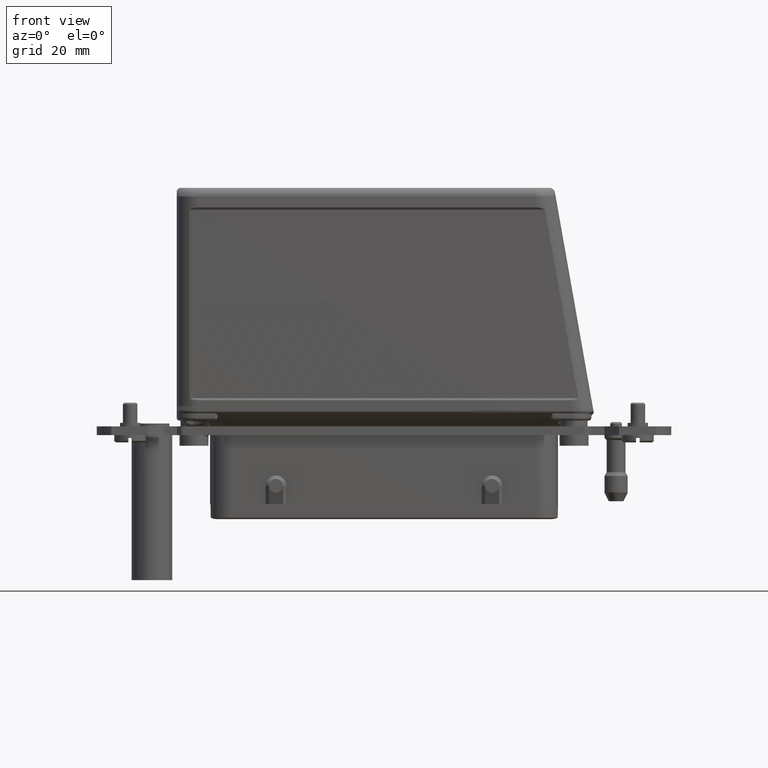
[diagram: clean part render]
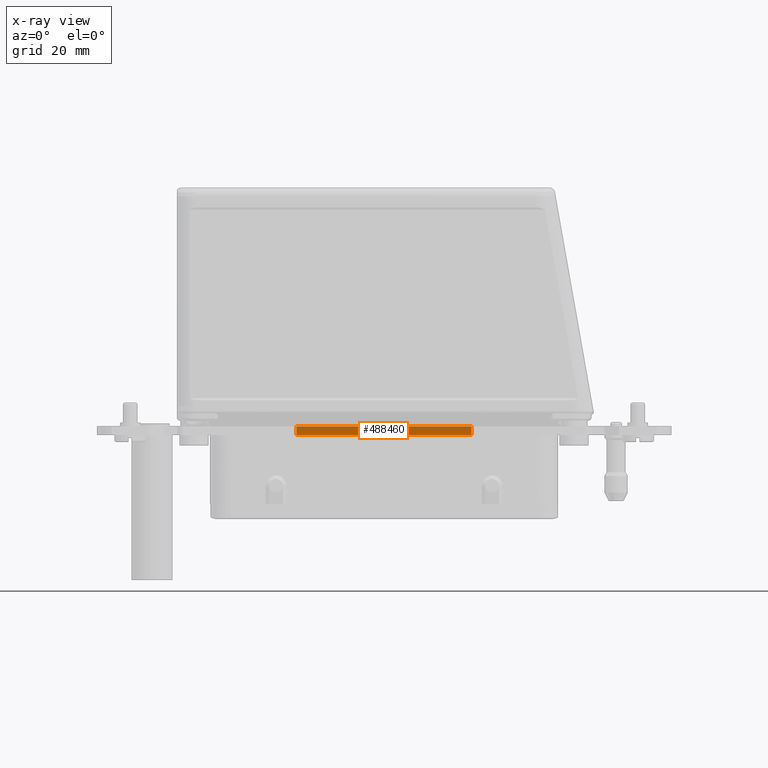
[diagram: x-ray — body ghosted, one internal face saturated and labeled with its STEP entity id]
A machine part, front view, then the same camera in x-ray: the body is ghosted and one INTERNAL B-rep face — a face not visible from any outside direction — is saturated and labeled: STEP entity #488460.
In plain terms, the highlighted planar face has unit normal (0, -1, 0).
Its self-contained STEP definition (entity closure, byte-faithful):
#294530=CARTESIAN_POINT('',(23.1227086717833,46.5366080000316,
-34.1685282786842));
#294540=VERTEX_POINT('',#294530);
#294570=CARTESIAN_POINT('',(23.1227086717848,46.5366080000316,0.));
#294580=DIRECTION('',(4.28787440495794E-14,1.89326617253043E-29,1.));
#294590=VECTOR('',#294580,1.);
#294600=LINE('',#294570,#294590);
#294610=CARTESIAN_POINT('',(23.1227086717859,46.5366080000316,
26.2621637693998));
#294620=VERTEX_POINT('',#294610);
#294630=EDGE_CURVE('',#294540,#294620,#294600,.T.);
#488080=CARTESIAN_POINT('',(23.1227086717859,43.5366080000277,
26.2621637693999));
#488090=VERTEX_POINT('',#488080);
#488140=CARTESIAN_POINT('',(23.1227086717859,43.5366080000277,
26.2621637693999));
#488150=DIRECTION('',(2.22044604924989E-16,1.,1.40770638749233E-16));
#488160=VECTOR('',#488150,1.);
#488170=LINE('',#488140,#488160);
#488180=EDGE_CURVE('',#488090,#294620,#488170,.T.);
#488230=CARTESIAN_POINT('',(23.1227086717828,43.5366080000278,
-45.8031822546421));
#488240=DIRECTION('',(-1.,2.22044604924983E-16,4.28787440495794E-14));
#488250=DIRECTION('',(4.28787440495794E-14,-1.11022302462541E-16,1.));
#488260=AXIS2_PLACEMENT_3D('',#488230,#488240,#488250);
#488270=PLANE('',#488260);
#488280=CARTESIAN_POINT('',(23.1227086717875,43.5366080000277,
63.7481831688599));
#488290=DIRECTION('',(4.28787440495794E-14,-1.11022302462541E-16,1.));
#488300=VECTOR('',#488290,1.);
#488310=LINE('',#488280,#488300);
#488320=CARTESIAN_POINT('',(23.1227086717833,43.5366080000278,
-34.1685282786851));
#488330=VERTEX_POINT('',#488320);
#488340=EDGE_CURVE('',#488330,#488090,#488310,.T.);
#488350=ORIENTED_EDGE('',*,*,#488340,.F.);
#488360=ORIENTED_EDGE('',*,*,#488180,.F.);
#488370=ORIENTED_EDGE('',*,*,#294630,.T.);
#488380=CARTESIAN_POINT('',(23.1227086717833,43.5366080000278,
-34.1685282786851));
#488390=DIRECTION('',(-2.22044604924986E-16,-1.,-8.12739661758302E-17));
#488400=VECTOR('',#488390,1.);
#488410=LINE('',#488380,#488400);
#488420=EDGE_CURVE('',#294540,#488330,#488410,.T.);
#488430=ORIENTED_EDGE('',*,*,#488420,.F.);
#488440=EDGE_LOOP('',(#488430,#488370,#488360,#488350));
#488450=FACE_OUTER_BOUND('',#488440,.T.);
#488460=ADVANCED_FACE('',(#488450),#488270,.F.);